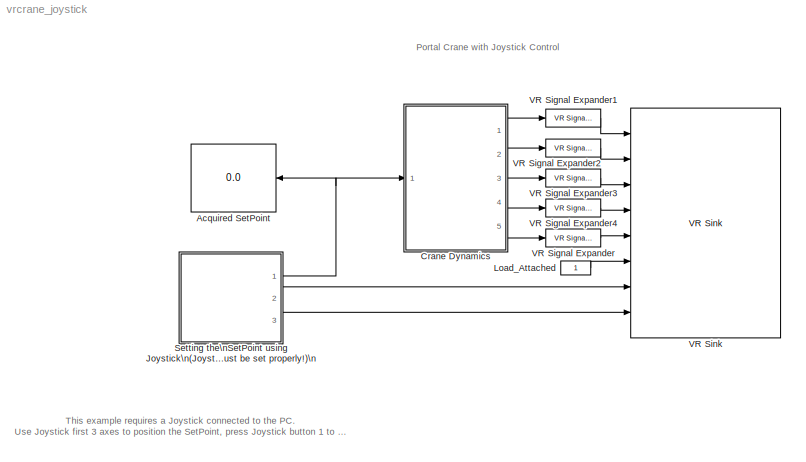
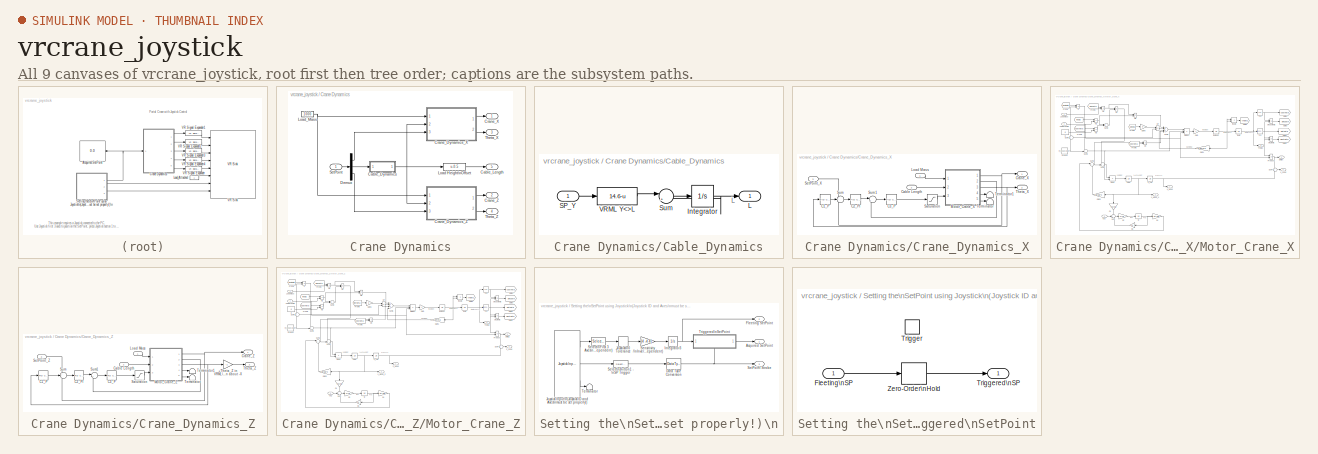
[diagram: thumbnail index - all 9 canvases of the model, root first then tree order]
MODEL vrcrane_joystick
KIND model
CONFIG PostLoadFcn = Ra=2.6;\nLa=0.012;\nB=1e-1;\nKt=1e2;\nKv=3e-2;\nKg=1e-3;\nJ=0.1;\ng=9.80665;\nm_head=100;\nGamma=10;
BLOCK [Display] Acquired SetPoint
  Decimation = 1
  Ports = [1]
BLOCK [SubSystem] Crane Dynamics
  MinAlgLoopOccurrences = off
  Ports = [1, 5]
  PropExecContextAcrossSSBoundary = on
  RTWSystemCode = Auto
  TreatAsAtomicUnit = off
BLOCK [SubSystem] Crane Dynamics/Cable_Dynamics
  MinAlgLoopOccurrences = off
  Ports = [1, 1]
  PropExecContextAcrossSSBoundary = on
  RTWSystemCode = Auto
  TreatAsAtomicUnit = off
BLOCK [Integrator] Crane Dynamics/Cable_Dynamics/Integrator
  InitialCondition = 14.6
  LimitOutput = on
  LowerSaturationLimit = 4.6
  Ports = [1, 1]
  UpperSaturationLimit = 14.6
BLOCK [Outport] Crane Dynamics/Cable_Dynamics/L
  BusOutputAsStruct = off
  IconDisplay = Port number
BLOCK [Inport] Crane Dynamics/Cable_Dynamics/SP_Y
  IconDisplay = Port number
  LatchInput = off
BLOCK [Sum] Crane Dynamics/Cable_Dynamics/Sum
  IconShape = round
  InputSameDT = off
  Inputs = |+-
  OutDataTypeMode = Inherit via internal rule
  Ports = [2, 1]
  SaturateOnIntegerOverflow = off
BLOCK [Fcn] Crane Dynamics/Cable_Dynamics/VRML Y<>L
  Expr = 14.6-u
  SampleTime = 0
BLOCK [Outport] Crane Dynamics/Cable_Length
  BusOutputAsStruct = off
  IconDisplay = Port number
  Port = 5
BLOCK [SubSystem] Crane Dynamics/Crane_Dynamics_X
  MinAlgLoopOccurrences = off
  Ports = [3, 2]
  PropExecContextAcrossSSBoundary = on
  RTWSystemCode = Auto
  TreatAsAtomicUnit = off
BLOCK [Reference] Crane Dynamics/Crane_Dynamics_X/C1_P  REF=simulink_extras/Additional\nLinear/PID Controller
  D = 0
  I = 0
  P = -20
  Ports = [1, 1]
  ShowPortLabels = on
  SourceBlock = simulink_extras/Additional\nLinear/PID Controller
  SourceType = PID Controller
BLOCK [Reference] Crane Dynamics/Crane_Dynamics_X/C2_PI  REF=simulink_extras/Additional\nLinear/PID Controller
  D = 0
  I = 0
  P = 2.5
  Ports = [1, 1]
  ShowPortLabels = on
  SourceBlock = simulink_extras/Additional\nLinear/PID Controller
  SourceType = PID Controller
BLOCK [Reference] Crane Dynamics/Crane_Dynamics_X/C3_P  REF=simulink_extras/Additional\nLinear/PID Controller
  D = 0
  I = 0
  P = 5
  Ports = [1, 1]
  ShowPortLabels = on
  SourceBlock = simulink_extras/Additional\nLinear/PID Controller
  SourceType = PID Controller
BLOCK [Inport] Crane Dynamics/Crane_Dynamics_X/Cable Length
  IconDisplay = Port number
  LatchInput = off
  Port = 2
BLOCK [Outport] Crane Dynamics/Crane_Dynamics_X/Crane_X
  BusOutputAsStruct = off
  IconDisplay = Port number
BLOCK [Inport] Crane Dynamics/Crane_Dynamics_X/Load Mass
  IconDisplay = Port number
  LatchInput = off
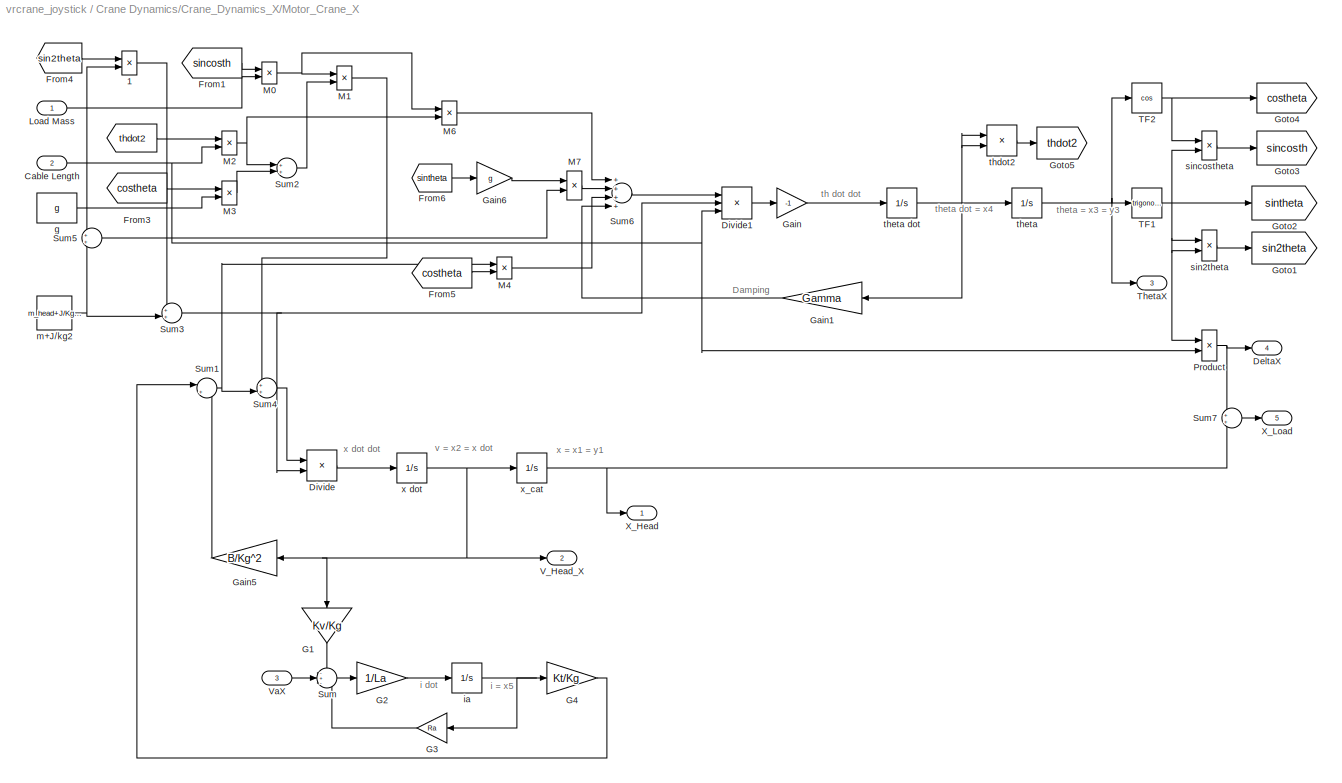
BLOCK [SubSystem] Crane Dynamics/Crane_Dynamics_X/Motor_Crane_X
  MinAlgLoopOccurrences = off
  Ports = [3, 5]
  PropExecContextAcrossSSBoundary = on
  RTWSystemCode = Auto
  TreatAsAtomicUnit = off
BLOCK [From] Crane Dynamics/Crane_Dynamics_X/Motor_Crane_X/ 
  CloseFcn = tagdialog Close
  DialogController = Simulink.DDGSource
  GotoTag = thdot2
BLOCK [Product] Crane Dynamics/Crane_Dynamics_X/Motor_Crane_X/ 1
  InputSameDT = off
  Inputs = **
  OutDataTypeMode = Inherit via internal rule
  OutScaling = 2^-10
  Ports = [2, 1]
  RndMeth = Floor
  SaturateOnIntegerOverflow = off
BLOCK [Inport] Crane Dynamics/Crane_Dynamics_X/Motor_Crane_X/Cable Length
  IconDisplay = Port number
  LatchInput = off
  Port = 2
BLOCK [Outport] Crane Dynamics/Crane_Dynamics_X/Motor_Crane_X/DeltaX
  BusOutputAsStruct = off
  IconDisplay = Port number
  Port = 4
BLOCK [Product] Crane Dynamics/Crane_Dynamics_X/Motor_Crane_X/Divide
  InputSameDT = off
  Inputs = */
  OutDataTypeMode = Inherit via internal rule
  OutScaling = 2^-10
  Ports = [2, 1]
  RndMeth = Floor
  SaturateOnIntegerOverflow = off
BLOCK [Product] Crane Dynamics/Crane_Dynamics_X/Motor_Crane_X/Divide1
  InputSameDT = off
  Inputs = *//
  OutDataTypeMode = Inherit via internal rule
  OutScaling = 2^-10
  Ports = [3, 1]
  RndMeth = Floor
  SaturateOnIntegerOverflow = off
BLOCK [From] Crane Dynamics/Crane_Dynamics_X/Motor_Crane_X/From1
  CloseFcn = tagdialog Close
  DialogController = Simulink.DDGSource
  GotoTag = sincosth
BLOCK [From] Crane Dynamics/Crane_Dynamics_X/Motor_Crane_X/From3
  CloseFcn = tagdialog Close
  DialogController = Simulink.DDGSource
  GotoTag = costheta
BLOCK [From] Crane Dynamics/Crane_Dynamics_X/Motor_Crane_X/From4
  CloseFcn = tagdialog Close
  DialogController = Simulink.DDGSource
  GotoTag = sin2theta
BLOCK [From] Crane Dynamics/Crane_Dynamics_X/Motor_Crane_X/From5
  CloseFcn = tagdialog Close
  DialogController = Simulink.DDGSource
  GotoTag = costheta
BLOCK [From] Crane Dynamics/Crane_Dynamics_X/Motor_Crane_X/From6
  CloseFcn = tagdialog Close
  DialogController = Simulink.DDGSource
  GotoTag = sintheta
BLOCK [Gain] Crane Dynamics/Crane_Dynamics_X/Motor_Crane_X/G1
  Gain = Kv/Kg
  OutDataTypeMode = Inherit via internal rule
  ParameterDataTypeMode = Inherit via internal rule
  SaturateOnIntegerOverflow = off
BLOCK [Gain] Crane Dynamics/Crane_Dynamics_X/Motor_Crane_X/G2
  Gain = 1/La
  OutDataTypeMode = Inherit via internal rule
  ParameterDataTypeMode = Inherit via internal rule
  SaturateOnIntegerOverflow = off
BLOCK [Gain] Crane Dynamics/Crane_Dynamics_X/Motor_Crane_X/G3
  Gain = Ra
  OutDataTypeMode = Inherit via internal rule
  ParameterDataTypeMode = Inherit via internal rule
  SaturateOnIntegerOverflow = off
BLOCK [Gain] Crane Dynamics/Crane_Dynamics_X/Motor_Crane_X/G4
  Gain = Kt/Kg
  OutDataTypeMode = Inherit via internal rule
  ParameterDataTypeMode = Inherit via internal rule
  SaturateOnIntegerOverflow = off
BLOCK [Gain] Crane Dynamics/Crane_Dynamics_X/Motor_Crane_X/Gain
  Gain = -1
  OutDataTypeMode = Inherit via internal rule
  ParameterDataTypeMode = Inherit via internal rule
  SaturateOnIntegerOverflow = off
BLOCK [Gain] Crane Dynamics/Crane_Dynamics_X/Motor_Crane_X/Gain1
  Gain = Gamma
  OutDataTypeMode = Inherit via internal rule
  ParameterDataTypeMode = Inherit via internal rule
  SaturateOnIntegerOverflow = off
BLOCK [Gain] Crane Dynamics/Crane_Dynamics_X/Motor_Crane_X/Gain5
  Gain = B/Kg^2
  OutDataTypeMode = Inherit via internal rule
  ParameterDataTypeMode = Inherit via internal rule
  SaturateOnIntegerOverflow = off
BLOCK [Gain] Crane Dynamics/Crane_Dynamics_X/Motor_Crane_X/Gain6
  Gain = g
  OutDataTypeMode = Inherit via internal rule
  ParameterDataTypeMode = Inherit via internal rule
  SaturateOnIntegerOverflow = off
BLOCK [Goto] Crane Dynamics/Crane_Dynamics_X/Motor_Crane_X/Goto1
  DialogController = Simulink.DDGSource
  GotoTag = sin2theta
  TagVisibility = local
BLOCK [Goto] Crane Dynamics/Crane_Dynamics_X/Motor_Crane_X/Goto2
  DialogController = Simulink.DDGSource
  GotoTag = sintheta
  TagVisibility = local
BLOCK [Goto] Crane Dynamics/Crane_Dynamics_X/Motor_Crane_X/Goto3
  DialogController = Simulink.DDGSource
  GotoTag = sincosth
  TagVisibility = local
BLOCK [Goto] Crane Dynamics/Crane_Dynamics_X/Motor_Crane_X/Goto4
  DialogController = Simulink.DDGSource
  GotoTag = costheta
  TagVisibility = local
BLOCK [Goto] Crane Dynamics/Crane_Dynamics_X/Motor_Crane_X/Goto5
  DialogController = Simulink.DDGSource
  GotoTag = thdot2
  TagVisibility = local
BLOCK [Inport] Crane Dynamics/Crane_Dynamics_X/Motor_Crane_X/Load Mass
  IconDisplay = Port number
  LatchInput = off
BLOCK [Product] Crane Dynamics/Crane_Dynamics_X/Motor_Crane_X/M0
  InputSameDT = off
  Inputs = **
  OutDataTypeMode = Inherit via internal rule
  OutScaling = 2^-10
  Ports = [2, 1]
  RndMeth = Floor
  SaturateOnIntegerOverflow = off
BLOCK [Product] Crane Dynamics/Crane_Dynamics_X/Motor_Crane_X/M1
  InputSameDT = off
  Inputs = **
  OutDataTypeMode = Inherit via internal rule
  OutScaling = 2^-10
  Ports = [2, 1]
  RndMeth = Floor
  SaturateOnIntegerOverflow = off
BLOCK [Product] Crane Dynamics/Crane_Dynamics_X/Motor_Crane_X/M2
  InputSameDT = off
  Inputs = **
  OutDataTypeMode = Inherit via internal rule
  OutScaling = 2^-10
  Ports = [2, 1]
  RndMeth = Floor
  SaturateOnIntegerOverflow = off
BLOCK [Product] Crane Dynamics/Crane_Dynamics_X/Motor_Crane_X/M3
  InputSameDT = off
  Inputs = **
  OutDataTypeMode = Inherit via internal rule
  OutScaling = 2^-10
  Ports = [2, 1]
  RndMeth = Floor
  SaturateOnIntegerOverflow = off
BLOCK [Product] Crane Dynamics/Crane_Dynamics_X/Motor_Crane_X/M4
  InputSameDT = off
  Inputs = **
  OutDataTypeMode = Inherit via internal rule
  OutScaling = 2^-10
  Ports = [2, 1]
  RndMeth = Floor
  SaturateOnIntegerOverflow = off
BLOCK [Product] Crane Dynamics/Crane_Dynamics_X/Motor_Crane_X/M6
  InputSameDT = off
  Inputs = **
  OutDataTypeMode = Inherit via internal rule
  OutScaling = 2^-10
  Ports = [2, 1]
  RndMeth = Floor
  SaturateOnIntegerOverflow = off
BLOCK [Product] Crane Dynamics/Crane_Dynamics_X/Motor_Crane_X/M7
  InputSameDT = off
  Inputs = **
  OutDataTypeMode = Inherit via internal rule
  OutScaling = 2^-10
  Ports = [2, 1]
  RndMeth = Floor
  SaturateOnIntegerOverflow = off
BLOCK [Product] Crane Dynamics/Crane_Dynamics_X/Motor_Crane_X/Product
  InputSameDT = off
  Ports = [2, 1]
  RndMeth = Floor
BLOCK [Sum] Crane Dynamics/Crane_Dynamics_X/Motor_Crane_X/Sum
  IconShape = round
  InputSameDT = off
  Inputs = -+-
  OutDataTypeMode = Inherit via internal rule
  Ports = [3, 1]
  SaturateOnIntegerOverflow = off
BLOCK [Sum] Crane Dynamics/Crane_Dynamics_X/Motor_Crane_X/Sum1
  IconShape = round
  InputSameDT = off
  Inputs = |+-
  OutDataTypeMode = Inherit via internal rule
  Ports = [2, 1]
  SaturateOnIntegerOverflow = off
BLOCK [Sum] Crane Dynamics/Crane_Dynamics_X/Motor_Crane_X/Sum2
  IconShape = round
  InputSameDT = off
  OutDataTypeMode = Inherit via internal rule
  Ports = [2, 1]
  SaturateOnIntegerOverflow = off
BLOCK [Sum] Crane Dynamics/Crane_Dynamics_X/Motor_Crane_X/Sum3
  IconShape = round
  InputSameDT = off
  Inputs = ++|
  OutDataTypeMode = Inherit via internal rule
  Ports = [2, 1]
  SaturateOnIntegerOverflow = off
BLOCK [Sum] Crane Dynamics/Crane_Dynamics_X/Motor_Crane_X/Sum4
  IconShape = round
  InputSameDT = off
  Inputs = ++|
  OutDataTypeMode = Inherit via internal rule
  Ports = [2, 1]
  SaturateOnIntegerOverflow = off
BLOCK [Sum] Crane Dynamics/Crane_Dynamics_X/Motor_Crane_X/Sum5
  IconShape = round
  InputSameDT = off
  OutDataTypeMode = Inherit via internal rule
  Ports = [2, 1]
  SaturateOnIntegerOverflow = off
BLOCK [Sum] Crane Dynamics/Crane_Dynamics_X/Motor_Crane_X/Sum6
  InputSameDT = off
  Inputs = ++++
  OutDataTypeMode = Inherit via internal rule
  Ports = [4, 1]
  SaturateOnIntegerOverflow = off
BLOCK [Sum] Crane Dynamics/Crane_Dynamics_X/Motor_Crane_X/Sum7
  IconShape = round
  InputSameDT = off
  OutDataTypeMode = Inherit via internal rule
  Ports = [2, 1]
  SaturateOnIntegerOverflow = off
BLOCK [Trigonometry] Crane Dynamics/Crane_Dynamics_X/Motor_Crane_X/TF1
  Ports = [1, 1]
BLOCK [Trigonometry] Crane Dynamics/Crane_Dynamics_X/Motor_Crane_X/TF2
  Operator = cos
  Ports = [1, 1]
BLOCK [Outport] Crane Dynamics/Crane_Dynamics_X/Motor_Crane_X/ThetaX
  BusOutputAsStruct = off
  IconDisplay = Port number
  Port = 3
BLOCK [Outport] Crane Dynamics/Crane_Dynamics_X/Motor_Crane_X/V_Head_X
  BusOutputAsStruct = off
  IconDisplay = Port number
  Port = 2
BLOCK [Inport] Crane Dynamics/Crane_Dynamics_X/Motor_Crane_X/VaX
  IconDisplay = Port number
  LatchInput = off
  Port = 3
BLOCK [Outport] Crane Dynamics/Crane_Dynamics_X/Motor_Crane_X/X_Head
  BusOutputAsStruct = off
  IconDisplay = Port number
BLOCK [Outport] Crane Dynamics/Crane_Dynamics_X/Motor_Crane_X/X_Load
  BusOutputAsStruct = off
  IconDisplay = Port number
  Port = 5
BLOCK [Constant] Crane Dynamics/Crane_Dynamics_X/Motor_Crane_X/g
  Value = g
BLOCK [Integrator] Crane Dynamics/Crane_Dynamics_X/Motor_Crane_X/ia
  Ports = [1, 1]
BLOCK [Constant] Crane Dynamics/Crane_Dynamics_X/Motor_Crane_X/m+J//kg2
  Value = m_head+J/Kg^2
BLOCK [Product] Crane Dynamics/Crane_Dynamics_X/Motor_Crane_X/sin2theta
  InputSameDT = off
  Inputs = **
  OutDataTypeMode = Inherit via internal rule
  OutScaling = 2^-10
  Ports = [2, 1]
  RndMeth = Floor
  SaturateOnIntegerOverflow = off
BLOCK [Product] Crane Dynamics/Crane_Dynamics_X/Motor_Crane_X/sincostheta
  InputSameDT = off
  Inputs = **
  OutDataTypeMode = Inherit via internal rule
  OutScaling = 2^-10
  Ports = [2, 1]
  RndMeth = Floor
  SaturateOnIntegerOverflow = off
BLOCK [Product] Crane Dynamics/Crane_Dynamics_X/Motor_Crane_X/thdot2
  InputSameDT = off
  Inputs = **
  OutDataTypeMode = Inherit via internal rule
  OutScaling = 2^-10
  Ports = [2, 1]
  RndMeth = Floor
  SaturateOnIntegerOverflow = off
BLOCK [Integrator] Crane Dynamics/Crane_Dynamics_X/Motor_Crane_X/theta
  Ports = [1, 1]
BLOCK [Integrator] Crane Dynamics/Crane_Dynamics_X/Motor_Crane_X/theta dot
  Ports = [1, 1]
BLOCK [Integrator] Crane Dynamics/Crane_Dynamics_X/Motor_Crane_X/x dot
  Ports = [1, 1]
BLOCK [Integrator] Crane Dynamics/Crane_Dynamics_X/Motor_Crane_X/x_cat
  Ports = [1, 1]
BLOCK [Saturate] Crane Dynamics/Crane_Dynamics_X/Saturation
  LowerLimit = -50
  UpperLimit = 50
BLOCK [Inport] Crane Dynamics/Crane_Dynamics_X/SetPoint_X
  IconDisplay = Port number
  LatchInput = off
  Port = 3
BLOCK [Sum] Crane Dynamics/Crane_Dynamics_X/Sum
  IconShape = round
  Inputs = +--
  Ports = [3, 1]
BLOCK [Sum] Crane Dynamics/Crane_Dynamics_X/Sum1
  IconShape = round
  Inputs = |+-
  Ports = [2, 1]
BLOCK [Terminator] Crane Dynamics/Crane_Dynamics_X/Terminator
BLOCK [Terminator] Crane Dynamics/Crane_Dynamics_X/Terminator1
BLOCK [Outport] Crane Dynamics/Crane_Dynamics_X/Theta_X
  BusOutputAsStruct = off
  IconDisplay = Port number
  Port = 2
BLOCK [SubSystem] Crane Dynamics/Crane_Dynamics_Z
  MinAlgLoopOccurrences = off
  Ports = [3, 2]
  PropExecContextAcrossSSBoundary = on
  RTWSystemCode = Auto
  TreatAsAtomicUnit = off
BLOCK [Gain] Crane Dynamics/Crane_Dynamics_Z/+Theta_Z in VRML\nrepresented by\nrotation about -X
  Gain = -1
  OutDataTypeMode = Inherit via internal rule
  ParameterDataTypeMode = Inherit via internal rule
  SaturateOnIntegerOverflow = off
BLOCK [Reference] Crane Dynamics/Crane_Dynamics_Z/C1_P  REF=simulink_extras/Additional\nLinear/PID Controller
  D = 0
  I = 0
  P = -20
  Ports = [1, 1]
  ShowPortLabels = on
  SourceBlock = simulink_extras/Additional\nLinear/PID Controller
  SourceType = PID Controller
BLOCK [Reference] Crane Dynamics/Crane_Dynamics_Z/C2_PI  REF=simulink_extras/Additional\nLinear/PID Controller
  D = 0
  I = 0
  P = 2.5
  Ports = [1, 1]
  ShowPortLabels = on
  SourceBlock = simulink_extras/Additional\nLinear/PID Controller
  SourceType = PID Controller
BLOCK [Reference] Crane Dynamics/Crane_Dynamics_Z/C3_P  REF=simulink_extras/Additional\nLinear/PID Controller
  D = 0
  I = 0
  P = 5
  Ports = [1, 1]
  ShowPortLabels = on
  SourceBlock = simulink_extras/Additional\nLinear/PID Controller
  SourceType = PID Controller
BLOCK [Inport] Crane Dynamics/Crane_Dynamics_Z/Cable Length
  IconDisplay = Port number
  LatchInput = off
  Port = 2
BLOCK [Outport] Crane Dynamics/Crane_Dynamics_Z/Crane_Z
  BusOutputAsStruct = off
  IconDisplay = Port number
BLOCK [Inport] Crane Dynamics/Crane_Dynamics_Z/Load Mass
  IconDisplay = Port number
  LatchInput = off
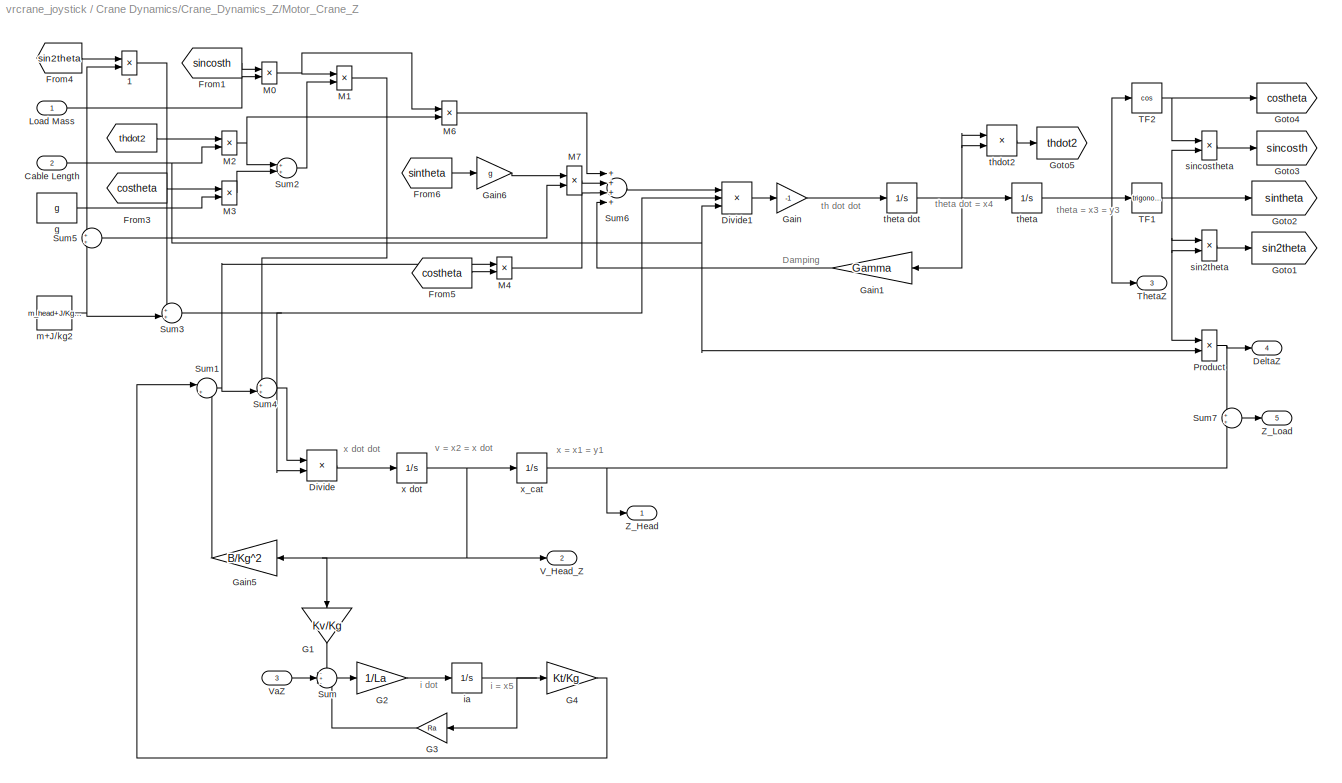
BLOCK [SubSystem] Crane Dynamics/Crane_Dynamics_Z/Motor_Crane_Z
  MinAlgLoopOccurrences = off
  Ports = [3, 5]
  PropExecContextAcrossSSBoundary = on
  RTWSystemCode = Auto
  TreatAsAtomicUnit = off
BLOCK [From] Crane Dynamics/Crane_Dynamics_Z/Motor_Crane_Z/ 
  CloseFcn = tagdialog Close
  DialogController = Simulink.DDGSource
  GotoTag = thdot2
BLOCK [Product] Crane Dynamics/Crane_Dynamics_Z/Motor_Crane_Z/ 1
  InputSameDT = off
  Inputs = **
  OutDataTypeMode = Inherit via internal rule
  OutScaling = 2^-10
  Ports = [2, 1]
  RndMeth = Floor
  SaturateOnIntegerOverflow = off
BLOCK [Inport] Crane Dynamics/Crane_Dynamics_Z/Motor_Crane_Z/Cable Length
  IconDisplay = Port number
  LatchInput = off
  Port = 2
BLOCK [Outport] Crane Dynamics/Crane_Dynamics_Z/Motor_Crane_Z/DeltaZ
  BusOutputAsStruct = off
  IconDisplay = Port number
  Port = 4
BLOCK [Product] Crane Dynamics/Crane_Dynamics_Z/Motor_Crane_Z/Divide
  InputSameDT = off
  Inputs = */
  OutDataTypeMode = Inherit via internal rule
  OutScaling = 2^-10
  Ports = [2, 1]
  RndMeth = Floor
  SaturateOnIntegerOverflow = off
BLOCK [Product] Crane Dynamics/Crane_Dynamics_Z/Motor_Crane_Z/Divide1
  InputSameDT = off
  Inputs = *//
  OutDataTypeMode = Inherit via internal rule
  OutScaling = 2^-10
  Ports = [3, 1]
  RndMeth = Floor
  SaturateOnIntegerOverflow = off
BLOCK [From] Crane Dynamics/Crane_Dynamics_Z/Motor_Crane_Z/From1
  CloseFcn = tagdialog Close
  DialogController = Simulink.DDGSource
  GotoTag = sincosth
BLOCK [From] Crane Dynamics/Crane_Dynamics_Z/Motor_Crane_Z/From3
  CloseFcn = tagdialog Close
  DialogController = Simulink.DDGSource
  GotoTag = costheta
BLOCK [From] Crane Dynamics/Crane_Dynamics_Z/Motor_Crane_Z/From4
  CloseFcn = tagdialog Close
  DialogController = Simulink.DDGSource
  GotoTag = sin2theta
BLOCK [From] Crane Dynamics/Crane_Dynamics_Z/Motor_Crane_Z/From5
  CloseFcn = tagdialog Close
  DialogController = Simulink.DDGSource
  GotoTag = costheta
BLOCK [From] Crane Dynamics/Crane_Dynamics_Z/Motor_Crane_Z/From6
  CloseFcn = tagdialog Close
  DialogController = Simulink.DDGSource
  GotoTag = sintheta
BLOCK [Gain] Crane Dynamics/Crane_Dynamics_Z/Motor_Crane_Z/G1
  Gain = Kv/Kg
  OutDataTypeMode = Inherit via internal rule
  ParameterDataTypeMode = Inherit via internal rule
  SaturateOnIntegerOverflow = off
BLOCK [Gain] Crane Dynamics/Crane_Dynamics_Z/Motor_Crane_Z/G2
  Gain = 1/La
  OutDataTypeMode = Inherit via internal rule
  ParameterDataTypeMode = Inherit via internal rule
  SaturateOnIntegerOverflow = off
BLOCK [Gain] Crane Dynamics/Crane_Dynamics_Z/Motor_Crane_Z/G3
  Gain = Ra
  OutDataTypeMode = Inherit via internal rule
  ParameterDataTypeMode = Inherit via internal rule
  SaturateOnIntegerOverflow = off
BLOCK [Gain] Crane Dynamics/Crane_Dynamics_Z/Motor_Crane_Z/G4
  Gain = Kt/Kg
  OutDataTypeMode = Inherit via internal rule
  ParameterDataTypeMode = Inherit via internal rule
  SaturateOnIntegerOverflow = off
BLOCK [Gain] Crane Dynamics/Crane_Dynamics_Z/Motor_Crane_Z/Gain
  Gain = -1
  OutDataTypeMode = Inherit via internal rule
  ParameterDataTypeMode = Inherit via internal rule
  SaturateOnIntegerOverflow = off
BLOCK [Gain] Crane Dynamics/Crane_Dynamics_Z/Motor_Crane_Z/Gain1
  Gain = Gamma
  OutDataTypeMode = Inherit via internal rule
  ParameterDataTypeMode = Inherit via internal rule
  SaturateOnIntegerOverflow = off
BLOCK [Gain] Crane Dynamics/Crane_Dynamics_Z/Motor_Crane_Z/Gain5
  Gain = B/Kg^2
  OutDataTypeMode = Inherit via internal rule
  ParameterDataTypeMode = Inherit via internal rule
  SaturateOnIntegerOverflow = off
BLOCK [Gain] Crane Dynamics/Crane_Dynamics_Z/Motor_Crane_Z/Gain6
  Gain = g
  OutDataTypeMode = Inherit via internal rule
  ParameterDataTypeMode = Inherit via internal rule
  SaturateOnIntegerOverflow = off
BLOCK [Goto] Crane Dynamics/Crane_Dynamics_Z/Motor_Crane_Z/Goto1
  DialogController = Simulink.DDGSource
  GotoTag = sin2theta
  TagVisibility = local
BLOCK [Goto] Crane Dynamics/Crane_Dynamics_Z/Motor_Crane_Z/Goto2
  DialogController = Simulink.DDGSource
  GotoTag = sintheta
  TagVisibility = local
BLOCK [Goto] Crane Dynamics/Crane_Dynamics_Z/Motor_Crane_Z/Goto3
  DialogController = Simulink.DDGSource
  GotoTag = sincosth
  TagVisibility = local
BLOCK [Goto] Crane Dynamics/Crane_Dynamics_Z/Motor_Crane_Z/Goto4
  DialogController = Simulink.DDGSource
  GotoTag = costheta
  TagVisibility = local
BLOCK [Goto] Crane Dynamics/Crane_Dynamics_Z/Motor_Crane_Z/Goto5
  DialogController = Simulink.DDGSource
  GotoTag = thdot2
  TagVisibility = local
BLOCK [Inport] Crane Dynamics/Crane_Dynamics_Z/Motor_Crane_Z/Load Mass
  IconDisplay = Port number
  LatchInput = off
BLOCK [Product] Crane Dynamics/Crane_Dynamics_Z/Motor_Crane_Z/M0
  InputSameDT = off
  Inputs = **
  OutDataTypeMode = Inherit via internal rule
  OutScaling = 2^-10
  Ports = [2, 1]
  RndMeth = Floor
  SaturateOnIntegerOverflow = off
BLOCK [Product] Crane Dynamics/Crane_Dynamics_Z/Motor_Crane_Z/M1
  InputSameDT = off
  Inputs = **
  OutDataTypeMode = Inherit via internal rule
  OutScaling = 2^-10
  Ports = [2, 1]
  RndMeth = Floor
  SaturateOnIntegerOverflow = off
BLOCK [Product] Crane Dynamics/Crane_Dynamics_Z/Motor_Crane_Z/M2
  InputSameDT = off
  Inputs = **
  OutDataTypeMode = Inherit via internal rule
  OutScaling = 2^-10
  Ports = [2, 1]
  RndMeth = Floor
  SaturateOnIntegerOverflow = off
BLOCK [Product] Crane Dynamics/Crane_Dynamics_Z/Motor_Crane_Z/M3
  InputSameDT = off
  Inputs = **
  OutDataTypeMode = Inherit via internal rule
  OutScaling = 2^-10
  Ports = [2, 1]
  RndMeth = Floor
  SaturateOnIntegerOverflow = off
BLOCK [Product] Crane Dynamics/Crane_Dynamics_Z/Motor_Crane_Z/M4
  InputSameDT = off
  Inputs = **
  OutDataTypeMode = Inherit via internal rule
  OutScaling = 2^-10
  Ports = [2, 1]
  RndMeth = Floor
  SaturateOnIntegerOverflow = off
BLOCK [Product] Crane Dynamics/Crane_Dynamics_Z/Motor_Crane_Z/M6
  InputSameDT = off
  Inputs = **
  OutDataTypeMode = Inherit via internal rule
  OutScaling = 2^-10
  Ports = [2, 1]
  RndMeth = Floor
  SaturateOnIntegerOverflow = off
BLOCK [Product] Crane Dynamics/Crane_Dynamics_Z/Motor_Crane_Z/M7
  InputSameDT = off
  Inputs = **
  OutDataTypeMode = Inherit via internal rule
  OutScaling = 2^-10
  Ports = [2, 1]
  RndMeth = Floor
  SaturateOnIntegerOverflow = off
BLOCK [Product] Crane Dynamics/Crane_Dynamics_Z/Motor_Crane_Z/Product
  InputSameDT = off
  Ports = [2, 1]
  RndMeth = Floor
BLOCK [Sum] Crane Dynamics/Crane_Dynamics_Z/Motor_Crane_Z/Sum
  IconShape = round
  InputSameDT = off
  Inputs = -+-
  OutDataTypeMode = Inherit via internal rule
  Ports = [3, 1]
  SaturateOnIntegerOverflow = off
BLOCK [Sum] Crane Dynamics/Crane_Dynamics_Z/Motor_Crane_Z/Sum1
  IconShape = round
  InputSameDT = off
  Inputs = |+-
  OutDataTypeMode = Inherit via internal rule
  Ports = [2, 1]
  SaturateOnIntegerOverflow = off
BLOCK [Sum] Crane Dynamics/Crane_Dynamics_Z/Motor_Crane_Z/Sum2
  IconShape = round
  InputSameDT = off
  OutDataTypeMode = Inherit via internal rule
  Ports = [2, 1]
  SaturateOnIntegerOverflow = off
BLOCK [Sum] Crane Dynamics/Crane_Dynamics_Z/Motor_Crane_Z/Sum3
  IconShape = round
  InputSameDT = off
  Inputs = ++|
  OutDataTypeMode = Inherit via internal rule
  Ports = [2, 1]
  SaturateOnIntegerOverflow = off
BLOCK [Sum] Crane Dynamics/Crane_Dynamics_Z/Motor_Crane_Z/Sum4
  IconShape = round
  InputSameDT = off
  Inputs = ++|
  OutDataTypeMode = Inherit via internal rule
  Ports = [2, 1]
  SaturateOnIntegerOverflow = off
BLOCK [Sum] Crane Dynamics/Crane_Dynamics_Z/Motor_Crane_Z/Sum5
  IconShape = round
  InputSameDT = off
  OutDataTypeMode = Inherit via internal rule
  Ports = [2, 1]
  SaturateOnIntegerOverflow = off
BLOCK [Sum] Crane Dynamics/Crane_Dynamics_Z/Motor_Crane_Z/Sum6
  InputSameDT = off
  Inputs = ++++
  OutDataTypeMode = Inherit via internal rule
  Ports = [4, 1]
  SaturateOnIntegerOverflow = off
BLOCK [Sum] Crane Dynamics/Crane_Dynamics_Z/Motor_Crane_Z/Sum7
  IconShape = round
  InputSameDT = off
  OutDataTypeMode = Inherit via internal rule
  Ports = [2, 1]
  SaturateOnIntegerOverflow = off
BLOCK [Trigonometry] Crane Dynamics/Crane_Dynamics_Z/Motor_Crane_Z/TF1
  Ports = [1, 1]
BLOCK [Trigonometry] Crane Dynamics/Crane_Dynamics_Z/Motor_Crane_Z/TF2
  Operator = cos
  Ports = [1, 1]
BLOCK [Outport] Crane Dynamics/Crane_Dynamics_Z/Motor_Crane_Z/ThetaZ
  BusOutputAsStruct = off
  IconDisplay = Port number
  Port = 3
BLOCK [Outport] Crane Dynamics/Crane_Dynamics_Z/Motor_Crane_Z/V_Head_Z
  BusOutputAsStruct = off
  IconDisplay = Port number
  Port = 2
BLOCK [Inport] Crane Dynamics/Crane_Dynamics_Z/Motor_Crane_Z/VaZ
  IconDisplay = Port number
  LatchInput = off
  Port = 3
BLOCK [Outport] Crane Dynamics/Crane_Dynamics_Z/Motor_Crane_Z/Z_Head
  BusOutputAsStruct = off
  IconDisplay = Port number
BLOCK [Outport] Crane Dynamics/Crane_Dynamics_Z/Motor_Crane_Z/Z_Load
  BusOutputAsStruct = off
  IconDisplay = Port number
  Port = 5
BLOCK [Constant] Crane Dynamics/Crane_Dynamics_Z/Motor_Crane_Z/g
  Value = g
BLOCK [Integrator] Crane Dynamics/Crane_Dynamics_Z/Motor_Crane_Z/ia
  Ports = [1, 1]
BLOCK [Constant] Crane Dynamics/Crane_Dynamics_Z/Motor_Crane_Z/m+J//kg2
  Value = m_head+J/Kg^2
BLOCK [Product] Crane Dynamics/Crane_Dynamics_Z/Motor_Crane_Z/sin2theta
  InputSameDT = off
  Inputs = **
  OutDataTypeMode = Inherit via internal rule
  OutScaling = 2^-10
  Ports = [2, 1]
  RndMeth = Floor
  SaturateOnIntegerOverflow = off
BLOCK [Product] Crane Dynamics/Crane_Dynamics_Z/Motor_Crane_Z/sincostheta
  InputSameDT = off
  Inputs = **
  OutDataTypeMode = Inherit via internal rule
  OutScaling = 2^-10
  Ports = [2, 1]
  RndMeth = Floor
  SaturateOnIntegerOverflow = off
BLOCK [Product] Crane Dynamics/Crane_Dynamics_Z/Motor_Crane_Z/thdot2
  InputSameDT = off
  Inputs = **
  OutDataTypeMode = Inherit via internal rule
  OutScaling = 2^-10
  Ports = [2, 1]
  RndMeth = Floor
  SaturateOnIntegerOverflow = off
BLOCK [Integrator] Crane Dynamics/Crane_Dynamics_Z/Motor_Crane_Z/theta
  Ports = [1, 1]
BLOCK [Integrator] Crane Dynamics/Crane_Dynamics_Z/Motor_Crane_Z/theta dot
  Ports = [1, 1]
BLOCK [Integrator] Crane Dynamics/Crane_Dynamics_Z/Motor_Crane_Z/x dot
  Ports = [1, 1]
BLOCK [Integrator] Crane Dynamics/Crane_Dynamics_Z/Motor_Crane_Z/x_cat
  Ports = [1, 1]
BLOCK [Saturate] Crane Dynamics/Crane_Dynamics_Z/Saturation
  LowerLimit = -50
  UpperLimit = 50
BLOCK [Inport] Crane Dynamics/Crane_Dynamics_Z/SetPoint_Z
  IconDisplay = Port number
  LatchInput = off
  Port = 3
BLOCK [Sum] Crane Dynamics/Crane_Dynamics_Z/Sum
  IconShape = round
  Inputs = +--
  Ports = [3, 1]
BLOCK [Sum] Crane Dynamics/Crane_Dynamics_Z/Sum1
  IconShape = round
  Inputs = |+-
  Ports = [2, 1]
BLOCK [Terminator] Crane Dynamics/Crane_Dynamics_Z/Terminator
BLOCK [Terminator] Crane Dynamics/Crane_Dynamics_Z/Terminator1
BLOCK [Outport] Crane Dynamics/Crane_Dynamics_Z/Theta_Z
  BusOutputAsStruct = off
  IconDisplay = Port number
  Port = 2
BLOCK [Outport] Crane Dynamics/Crane_X
  BusOutputAsStruct = off
  IconDisplay = Port number
BLOCK [Outport] Crane Dynamics/Crane_Z
  BusOutputAsStruct = off
  IconDisplay = Port number
  Port = 2
BLOCK [Demux] Crane Dynamics/Demux
  DisplayOption = bar
  Outputs = 3
  Ports = [1, 3]
BLOCK [Fcn] Crane Dynamics/Load Height\nOffset 
  Expr = u-0.5
BLOCK [Constant] Crane Dynamics/Load_Mass
  Value = 1000
BLOCK [Inport] Crane Dynamics/SetPoint
  IconDisplay = Port number
  LatchInput = off
BLOCK [Outport] Crane Dynamics/Theta_X
  BusOutputAsStruct = off
  IconDisplay = Port number
  Port = 3
BLOCK [Outport] Crane Dynamics/Theta_Z
  BusOutputAsStruct = off
  IconDisplay = Port number
  Port = 4
BLOCK [Constant] Load_Attached
BLOCK [SubSystem] Setting the\nSetPoint using Joystick\n(Joystick ID and Axes\nmust be set properly!)\n
  MinAlgLoopOccurrences = off
  Ports = [0, 3]
  PropExecContextAcrossSSBoundary = on
  RTWSystemCode = Auto
  TreatAsAtomicUnit = off
BLOCK [Outport] Setting the\nSetPoint using Joystick\n(Joystick ID and Axes\nmust be set properly!)\n/Acquired SetPoint
  BusOutputAsStruct = off
  IconDisplay = Port number
BLOCK [DataTypeConversion] Setting the\nSetPoint using Joystick\n(Joystick ID and Axes\nmust be set properly!)\n/Data Type Conversion
  OutDataTypeMode = boolean
  RndMeth = Floor
  SaturateOnIntegerOverflow = off
BLOCK [Outport] Setting the\nSetPoint using Joystick\n(Joystick ID and Axes\nmust be set properly!)\n/Fleeting SetPoint
  BusOutputAsStruct = off
  IconDisplay = Port number
  Port = 2
BLOCK [Integrator] Setting the\nSetPoint using Joystick\n(Joystick ID and Axes\nmust be set properly!)\n/Integrator3
  InitialCondition = [0 0 0]
  LimitOutput = on
  LowerSaturationLimit = [0 0 0]
  Ports = [1, 1]
  UpperSaturationLimit = [20 10 20]
BLOCK [Reference] Setting the\nSetPoint using Joystick\n(Joystick ID and Axes\nmust be set properly!)\n/Joystick Input\n(Joystick ID and Axes\nmust be set properly!)  REF=vrlib/Joystick Input
  Ports = [0, 3]
  SourceBlock = vrlib/Joystick Input
  SourceType = Joystick Input
  adjustports = off
  forcefeed = off
  joyid = 1
BLOCK [DeadZone] Setting the\nSetPoint using Joystick\n(Joystick ID and Axes\nmust be set properly!)\n/Joystick\n0 Tolerance
  LowerValue = -0.2
  UpperValue = 0.2
BLOCK [Selector] Setting the\nSetPoint using Joystick\n(Joystick ID and Axes\nmust be set properly!)\n/Select\nButton1 - \nSP Trigger
  Elements = [1]
  InputPortWidth = 32
  Ports = [1, 1]
BLOCK [Selector] Setting the\nSetPoint using Joystick\n(Joystick ID and Axes\nmust be set properly!)\n/Select\nFirst 3 Axes\n(Joystick -dependent)
  Elements = [1 3 2]
  InputPortWidth = 8
  Ports = [1, 1]
BLOCK [Gain] Setting the\nSetPoint using Joystick\n(Joystick ID and Axes\nmust be set properly!)\n/Sensitivity //\nInverting Y \n(Joystick -dependent)
  Gain = [4 -4 4]
  OutDataTypeMode = Inherit via internal rule
  ParameterDataTypeMode = Inherit via internal rule
  SaturateOnIntegerOverflow = off
BLOCK [Outport] Setting the\nSetPoint using Joystick\n(Joystick ID and Axes\nmust be set properly!)\n/SetPoint Strobe
  BusOutputAsStruct = off
  IconDisplay = Port number
  Port = 3
BLOCK [Terminator] Setting the\nSetPoint using Joystick\n(Joystick ID and Axes\nmust be set properly!)\n/Terminator
BLOCK [SubSystem] Setting the\nSetPoint using Joystick\n(Joystick ID and Axes\nmust be set properly!)\n/Triggered\nSetPoint
  MinAlgLoopOccurrences = off
  Ports = [1, 1, 0, 1]
  PropExecContextAcrossSSBoundary = on
  RTWSystemCode = Auto
  TreatAsAtomicUnit = on
BLOCK [Inport] Setting the\nSetPoint using Joystick\n(Joystick ID and Axes\nmust be set properly!)\n/Triggered\nSetPoint/Fleeting\nSP
  IconDisplay = Port number
  LatchInput = off
BLOCK [TriggerPort] Setting the\nSetPoint using Joystick\n(Joystick ID and Axes\nmust be set properly!)\n/Triggered\nSetPoint/Trigger
  Ports = []
  StatesWhenEnabling = held
BLOCK [Outport] Setting the\nSetPoint using Joystick\n(Joystick ID and Axes\nmust be set properly!)\n/Triggered\nSetPoint/Triggered\nSP
  BusOutputAsStruct = off
  IconDisplay = Port number
BLOCK [ZeroOrderHold] Setting the\nSetPoint using Joystick\n(Joystick ID and Axes\nmust be set properly!)\n/Triggered\nSetPoint/Zero-Order\nHold
  SampleTime = -1
BLOCK [Reference] VR Signal Expander  REF=vrlib/VR Signal Expander
  Ports = [1, 1]
  ShowPortLabels = on
  SourceBlock = vrlib/VR Signal Expander
  SourceType = VR Signal Expander
  outidx = [2]
  outwidth = 3
BLOCK [Reference] VR Signal Expander1  REF=vrlib/VR Signal Expander
  Ports = [1, 1]
  ShowPortLabels = on
  SourceBlock = vrlib/VR Signal Expander
  SourceType = VR Signal Expander
  outidx = [1]
  outwidth = 3
BLOCK [Reference] VR Signal Expander2  REF=vrlib/VR Signal Expander
  Ports = [1, 1]
  ShowPortLabels = on
  SourceBlock = vrlib/VR Signal Expander
  SourceType = VR Signal Expander
  outidx = [3]
  outwidth = 3
BLOCK [Reference] VR Signal Expander3  REF=vrlib/VR Signal Expander
  Ports = [1, 1]
  ShowPortLabels = on
  SourceBlock = vrlib/VR Signal Expander
  SourceType = VR Signal Expander
  outidx = [4]
  outwidth = 4
BLOCK [Reference] VR Signal Expander4  REF=vrlib/VR Signal Expander
  Ports = [1, 1]
  ShowPortLabels = on
  SourceBlock = vrlib/VR Signal Expander
  SourceType = VR Signal Expander
  outidx = [4]
  outwidth = 4
BLOCK [Reference] VR Sink  REF=vrlib/VR Sink
  AutoView = on
  FieldsWritten = Crane_X.translation.3.1.double#Crane_Z.translation.3.1.double#Parts_Rot_ZAxis.rotation.4.1.double#Parts_Rot_XAxis.rotation.4.1.double#CableUnit.scale.3.1.double#Load_Switch.whichChoice.1.1.double#SetPoint.translation.3.1.double#SP_Highlight.whichChoice.1.1.double
  FigureProperties = {'Position', 'Name', 'Viewpoint', 'CameraBound', 'CameraDirection', 'CameraPosition', 'CameraUpVector', 'ZoomFactor', 'Antialiasing', 'Headlight', 'Lighting', 'NavPanel', 'StatusBar', 'ToolBar', 'Textures', 'Transparency', 'Wireframe', 'NavZones', 'NavMode', 'NavSpeed', 'Record2DCompressMethod', 'Record2DCompressQuality', 'Record2D', 'Record2DFileName'; [6.0000000000000000e+000  7.0000000000000000...<+501ch>
  Ports = [8]
  RemoteChange = off
  RemoteView = off
  SampleTime = 0.1
  SourceBlock = vrlib/VR Sink
  SourceType = Virtual Reality Sink
  ViewEnable = on
  WorldDescription = VR Portal Crane
  WorldFileName = portal_crane.wrl
ANNOTATION (root): Portal Crane with Joystick Control
ANNOTATION (root): This example requires a Joystick connected to the PC.\nUse Joystick first 3 axes to position the SetPoint, press Joystick button 1 to start the crane.
ANNOTATION Crane Dynamics/Cable_Dynamics: L
ANNOTATION Crane Dynamics/Crane_Dynamics_X/Motor_Crane_X: Damping
ANNOTATION Crane Dynamics/Crane_Dynamics_X/Motor_Crane_X: i = x5
ANNOTATION Crane Dynamics/Crane_Dynamics_X/Motor_Crane_X: i dot
ANNOTATION Crane Dynamics/Crane_Dynamics_X/Motor_Crane_X: th dot dot
ANNOTATION Crane Dynamics/Crane_Dynamics_X/Motor_Crane_X: theta = x3 = y3
ANNOTATION Crane Dynamics/Crane_Dynamics_X/Motor_Crane_X: theta dot = x4
ANNOTATION Crane Dynamics/Crane_Dynamics_X/Motor_Crane_X: v = x2 = x dot
ANNOTATION Crane Dynamics/Crane_Dynamics_X/Motor_Crane_X: x = x1 = y1
ANNOTATION Crane Dynamics/Crane_Dynamics_X/Motor_Crane_X: x dot dot
ANNOTATION Crane Dynamics/Crane_Dynamics_Z/Motor_Crane_Z: Damping
ANNOTATION Crane Dynamics/Crane_Dynamics_Z/Motor_Crane_Z: i = x5
ANNOTATION Crane Dynamics/Crane_Dynamics_Z/Motor_Crane_Z: i dot
ANNOTATION Crane Dynamics/Crane_Dynamics_Z/Motor_Crane_Z: th dot dot
ANNOTATION Crane Dynamics/Crane_Dynamics_Z/Motor_Crane_Z: theta = x3 = y3
ANNOTATION Crane Dynamics/Crane_Dynamics_Z/Motor_Crane_Z: theta dot = x4
ANNOTATION Crane Dynamics/Crane_Dynamics_Z/Motor_Crane_Z: v = x2 = x dot
ANNOTATION Crane Dynamics/Crane_Dynamics_Z/Motor_Crane_Z: x = x1 = y1
ANNOTATION Crane Dynamics/Crane_Dynamics_Z/Motor_Crane_Z: x dot dot
NET Crane Dynamics/Cable_Dynamics/Integrator:1 -> Crane Dynamics/Cable_Dynamics/L:1, Crane Dynamics/Cable_Dynamics/Sum:2
LINE Crane Dynamics/Cable_Dynamics/SP_Y:1 -> Crane Dynamics/Cable_Dynamics/VRML Y<>L:1
LINE Crane Dynamics/Cable_Dynamics/Sum:1 -> Crane Dynamics/Cable_Dynamics/Integrator:1
LINE Crane Dynamics/Cable_Dynamics/VRML Y<>L:1 -> Crane Dynamics/Cable_Dynamics/Sum:1
NET Crane Dynamics/Cable_Dynamics:1 -> Crane Dynamics/Crane_Dynamics_X:2, Crane Dynamics/Crane_Dynamics_Z:2, Crane Dynamics/Load Height\nOffset :1
LINE Crane Dynamics/Crane_Dynamics_X/C1_P:1 -> Crane Dynamics/Crane_Dynamics_X/Sum:2
LINE Crane Dynamics/Crane_Dynamics_X/C2_PI:1 -> Crane Dynamics/Crane_Dynamics_X/Sum1:1
LINE Crane Dynamics/Crane_Dynamics_X/C3_P:1 -> Crane Dynamics/Crane_Dynamics_X/Saturation:1
LINE Crane Dynamics/Crane_Dynamics_X/Cable Length:1 -> Crane Dynamics/Crane_Dynamics_X/Motor_Crane_X:2
LINE Crane Dynamics/Crane_Dynamics_X/Load Mass:1 -> Crane Dynamics/Crane_Dynamics_X/Motor_Crane_X:1
LINE Crane Dynamics/Crane_Dynamics_X/Motor_Crane_X/ 1:1 -> Crane Dynamics/Crane_Dynamics_X/Motor_Crane_X/Sum3:1
LINE Crane Dynamics/Crane_Dynamics_X/Motor_Crane_X/ :1 -> Crane Dynamics/Crane_Dynamics_X/Motor_Crane_X/M2:1
NET Crane Dynamics/Crane_Dynamics_X/Motor_Crane_X/Cable Length:1 -> Crane Dynamics/Crane_Dynamics_X/Motor_Crane_X/Divide1:3, Crane Dynamics/Crane_Dynamics_X/Motor_Crane_X/M2:2, Crane Dynamics/Crane_Dynamics_X/Motor_Crane_X/Product:2
LINE Crane Dynamics/Crane_Dynamics_X/Motor_Crane_X/Divide1:1 -> Crane Dynamics/Crane_Dynamics_X/Motor_Crane_X/Gain:1
LINE Crane Dynamics/Crane_Dynamics_X/Motor_Crane_X/Divide:1 -> Crane Dynamics/Crane_Dynamics_X/Motor_Crane_X/x dot:1
LINE Crane Dynamics/Crane_Dynamics_X/Motor_Crane_X/From1:1 -> Crane Dynamics/Crane_Dynamics_X/Motor_Crane_X/M0:1
LINE Crane Dynamics/Crane_Dynamics_X/Motor_Crane_X/From3:1 -> Crane Dynamics/Crane_Dynamics_X/Motor_Crane_X/M3:1
LINE Crane Dynamics/Crane_Dynamics_X/Motor_Crane_X/From4:1 -> Crane Dynamics/Crane_Dynamics_X/Motor_Crane_X/ 1:1
LINE Crane Dynamics/Crane_Dynamics_X/Motor_Crane_X/From5:1 -> Crane Dynamics/Crane_Dynamics_X/Motor_Crane_X/M4:2
LINE Crane Dynamics/Crane_Dynamics_X/Motor_Crane_X/From6:1 -> Crane Dynamics/Crane_Dynamics_X/Motor_Crane_X/Gain6:1
LINE Crane Dynamics/Crane_Dynamics_X/Motor_Crane_X/G1:1 -> Crane Dynamics/Crane_Dynamics_X/Motor_Crane_X/Sum:1
LINE Crane Dynamics/Crane_Dynamics_X/Motor_Crane_X/G2:1 -> Crane Dynamics/Crane_Dynamics_X/Motor_Crane_X/ia:1
LINE Crane Dynamics/Crane_Dynamics_X/Motor_Crane_X/G3:1 -> Crane Dynamics/Crane_Dynamics_X/Motor_Crane_X/Sum:3
LINE Crane Dynamics/Crane_Dynamics_X/Motor_Crane_X/G4:1 -> Crane Dynamics/Crane_Dynamics_X/Motor_Crane_X/Sum1:1
LINE Crane Dynamics/Crane_Dynamics_X/Motor_Crane_X/Gain1:1 -> Crane Dynamics/Crane_Dynamics_X/Motor_Crane_X/Sum6:4
LINE Crane Dynamics/Crane_Dynamics_X/Motor_Crane_X/Gain5:1 -> Crane Dynamics/Crane_Dynamics_X/Motor_Crane_X/Sum1:2
LINE Crane Dynamics/Crane_Dynamics_X/Motor_Crane_X/Gain6:1 -> Crane Dynamics/Crane_Dynamics_X/Motor_Crane_X/M7:1
LINE Crane Dynamics/Crane_Dynamics_X/Motor_Crane_X/Gain:1 -> Crane Dynamics/Crane_Dynamics_X/Motor_Crane_X/theta dot:1
NET Crane Dynamics/Crane_Dynamics_X/Motor_Crane_X/Load Mass:1 -> Crane Dynamics/Crane_Dynamics_X/Motor_Crane_X/ 1:2, Crane Dynamics/Crane_Dynamics_X/Motor_Crane_X/M0:2, Crane Dynamics/Crane_Dynamics_X/Motor_Crane_X/Sum5:1
NET Crane Dynamics/Crane_Dynamics_X/Motor_Crane_X/M0:1 -> Crane Dynamics/Crane_Dynamics_X/Motor_Crane_X/M1:1, Crane Dynamics/Crane_Dynamics_X/Motor_Crane_X/M6:1
LINE Crane Dynamics/Crane_Dynamics_X/Motor_Crane_X/M1:1 -> Crane Dynamics/Crane_Dynamics_X/Motor_Crane_X/Sum4:1
NET Crane Dynamics/Crane_Dynamics_X/Motor_Crane_X/M2:1 -> Crane Dynamics/Crane_Dynamics_X/Motor_Crane_X/M6:2, Crane Dynamics/Crane_Dynamics_X/Motor_Crane_X/Sum2:1
LINE Crane Dynamics/Crane_Dynamics_X/Motor_Crane_X/M3:1 -> Crane Dynamics/Crane_Dynamics_X/Motor_Crane_X/Sum2:2
LINE Crane Dynamics/Crane_Dynamics_X/Motor_Crane_X/M4:1 -> Crane Dynamics/Crane_Dynamics_X/Motor_Crane_X/Sum6:3
LINE Crane Dynamics/Crane_Dynamics_X/Motor_Crane_X/M6:1 -> Crane Dynamics/Crane_Dynamics_X/Motor_Crane_X/Sum6:1
LINE Crane Dynamics/Crane_Dynamics_X/Motor_Crane_X/M7:1 -> Crane Dynamics/Crane_Dynamics_X/Motor_Crane_X/Sum6:2
NET Crane Dynamics/Crane_Dynamics_X/Motor_Crane_X/Product:1 -> Crane Dynamics/Crane_Dynamics_X/Motor_Crane_X/DeltaX:1, Crane Dynamics/Crane_Dynamics_X/Motor_Crane_X/Sum7:1
NET Crane Dynamics/Crane_Dynamics_X/Motor_Crane_X/Sum1:1 -> Crane Dynamics/Crane_Dynamics_X/Motor_Crane_X/M4:1, Crane Dynamics/Crane_Dynamics_X/Motor_Crane_X/Sum4:2
LINE Crane Dynamics/Crane_Dynamics_X/Motor_Crane_X/Sum2:1 -> Crane Dynamics/Crane_Dynamics_X/Motor_Crane_X/M1:2
NET Crane Dynamics/Crane_Dynamics_X/Motor_Crane_X/Sum3:1 -> Crane Dynamics/Crane_Dynamics_X/Motor_Crane_X/Divide1:2, Crane Dynamics/Crane_Dynamics_X/Motor_Crane_X/Divide:2
LINE Crane Dynamics/Crane_Dynamics_X/Motor_Crane_X/Sum4:1 -> Crane Dynamics/Crane_Dynamics_X/Motor_Crane_X/Divide:1
LINE Crane Dynamics/Crane_Dynamics_X/Motor_Crane_X/Sum5:1 -> Crane Dynamics/Crane_Dynamics_X/Motor_Crane_X/M7:2
LINE Crane Dynamics/Crane_Dynamics_X/Motor_Crane_X/Sum6:1 -> Crane Dynamics/Crane_Dynamics_X/Motor_Crane_X/Divide1:1
LINE Crane Dynamics/Crane_Dynamics_X/Motor_Crane_X/Sum7:1 -> Crane Dynamics/Crane_Dynamics_X/Motor_Crane_X/X_Load:1
LINE Crane Dynamics/Crane_Dynamics_X/Motor_Crane_X/Sum:1 -> Crane Dynamics/Crane_Dynamics_X/Motor_Crane_X/G2:1
NET Crane Dynamics/Crane_Dynamics_X/Motor_Crane_X/TF1:1 -> Crane Dynamics/Crane_Dynamics_X/Motor_Crane_X/Goto2:1, Crane Dynamics/Crane_Dynamics_X/Motor_Crane_X/Product:1, Crane Dynamics/Crane_Dynamics_X/Motor_Crane_X/sin2theta:1, Crane Dynamics/Crane_Dynamics_X/Motor_Crane_X/sin2theta:2, Crane Dynamics/Crane_Dynamics_X/Motor_Crane_X/sincostheta:2
NET Crane Dynamics/Crane_Dynamics_X/Motor_Crane_X/TF2:1 -> Crane Dynamics/Crane_Dynamics_X/Motor_Crane_X/Goto4:1, Crane Dynamics/Crane_Dynamics_X/Motor_Crane_X/sincostheta:1
LINE Crane Dynamics/Crane_Dynamics_X/Motor_Crane_X/VaX:1 -> Crane Dynamics/Crane_Dynamics_X/Motor_Crane_X/Sum:2
LINE Crane Dynamics/Crane_Dynamics_X/Motor_Crane_X/g:1 -> Crane Dynamics/Crane_Dynamics_X/Motor_Crane_X/M3:2
NET Crane Dynamics/Crane_Dynamics_X/Motor_Crane_X/ia:1 -> Crane Dynamics/Crane_Dynamics_X/Motor_Crane_X/G3:1, Crane Dynamics/Crane_Dynamics_X/Motor_Crane_X/G4:1
NET Crane Dynamics/Crane_Dynamics_X/Motor_Crane_X/m+J//kg2:1 -> Crane Dynamics/Crane_Dynamics_X/Motor_Crane_X/Sum3:2, Crane Dynamics/Crane_Dynamics_X/Motor_Crane_X/Sum5:2
LINE Crane Dynamics/Crane_Dynamics_X/Motor_Crane_X/sin2theta:1 -> Crane Dynamics/Crane_Dynamics_X/Motor_Crane_X/Goto1:1
LINE Crane Dynamics/Crane_Dynamics_X/Motor_Crane_X/sincostheta:1 -> Crane Dynamics/Crane_Dynamics_X/Motor_Crane_X/Goto3:1
LINE Crane Dynamics/Crane_Dynamics_X/Motor_Crane_X/thdot2:1 -> Crane Dynamics/Crane_Dynamics_X/Motor_Crane_X/Goto5:1
NET Crane Dynamics/Crane_Dynamics_X/Motor_Crane_X/theta dot:1 -> Crane Dynamics/Crane_Dynamics_X/Motor_Crane_X/Gain1:1, Crane Dynamics/Crane_Dynamics_X/Motor_Crane_X/thdot2:1, Crane Dynamics/Crane_Dynamics_X/Motor_Crane_X/thdot2:2, Crane Dynamics/Crane_Dynamics_X/Motor_Crane_X/theta:1
NET Crane Dynamics/Crane_Dynamics_X/Motor_Crane_X/theta:1 -> Crane Dynamics/Crane_Dynamics_X/Motor_Crane_X/TF1:1, Crane Dynamics/Crane_Dynamics_X/Motor_Crane_X/TF2:1, Crane Dynamics/Crane_Dynamics_X/Motor_Crane_X/ThetaX:1
NET Crane Dynamics/Crane_Dynamics_X/Motor_Crane_X/x dot:1 -> Crane Dynamics/Crane_Dynamics_X/Motor_Crane_X/G1:1, Crane Dynamics/Crane_Dynamics_X/Motor_Crane_X/Gain5:1, Crane Dynamics/Crane_Dynamics_X/Motor_Crane_X/V_Head_X:1, Crane Dynamics/Crane_Dynamics_X/Motor_Crane_X/x_cat:1
NET Crane Dynamics/Crane_Dynamics_X/Motor_Crane_X/x_cat:1 -> Crane Dynamics/Crane_Dynamics_X/Motor_Crane_X/Sum7:2, Crane Dynamics/Crane_Dynamics_X/Motor_Crane_X/X_Head:1
NET Crane Dynamics/Crane_Dynamics_X/Motor_Crane_X:1 -> Crane Dynamics/Crane_Dynamics_X/Crane_X:1, Crane Dynamics/Crane_Dynamics_X/Sum:3
LINE Crane Dynamics/Crane_Dynamics_X/Motor_Crane_X:2 -> Crane Dynamics/Crane_Dynamics_X/Sum1:2
NET Crane Dynamics/Crane_Dynamics_X/Motor_Crane_X:3 -> Crane Dynamics/Crane_Dynamics_X/C1_P:1, Crane Dynamics/Crane_Dynamics_X/Theta_X:1
LINE Crane Dynamics/Crane_Dynamics_X/Motor_Crane_X:4 -> Crane Dynamics/Crane_Dynamics_X/Terminator1:1
LINE Crane Dynamics/Crane_Dynamics_X/Motor_Crane_X:5 -> Crane Dynamics/Crane_Dynamics_X/Terminator:1
LINE Crane Dynamics/Crane_Dynamics_X/Saturation:1 -> Crane Dynamics/Crane_Dynamics_X/Motor_Crane_X:3
LINE Crane Dynamics/Crane_Dynamics_X/SetPoint_X:1 -> Crane Dynamics/Crane_Dynamics_X/Sum:1
LINE Crane Dynamics/Crane_Dynamics_X/Sum1:1 -> Crane Dynamics/Crane_Dynamics_X/C3_P:1
LINE Crane Dynamics/Crane_Dynamics_X/Sum:1 -> Crane Dynamics/Crane_Dynamics_X/C2_PI:1
LINE Crane Dynamics/Crane_Dynamics_X:1 -> Crane Dynamics/Crane_X:1
LINE Crane Dynamics/Crane_Dynamics_X:2 -> Crane Dynamics/Theta_X:1
LINE Crane Dynamics/Crane_Dynamics_Z/+Theta_Z in VRML\nrepresented by\nrotation about -X:1 -> Crane Dynamics/Crane_Dynamics_Z/Theta_Z:1
LINE Crane Dynamics/Crane_Dynamics_Z/C1_P:1 -> Crane Dynamics/Crane_Dynamics_Z/Sum:2
LINE Crane Dynamics/Crane_Dynamics_Z/C2_PI:1 -> Crane Dynamics/Crane_Dynamics_Z/Sum1:1
LINE Crane Dynamics/Crane_Dynamics_Z/C3_P:1 -> Crane Dynamics/Crane_Dynamics_Z/Saturation:1
LINE Crane Dynamics/Crane_Dynamics_Z/Cable Length:1 -> Crane Dynamics/Crane_Dynamics_Z/Motor_Crane_Z:2
LINE Crane Dynamics/Crane_Dynamics_Z/Load Mass:1 -> Crane Dynamics/Crane_Dynamics_Z/Motor_Crane_Z:1
LINE Crane Dynamics/Crane_Dynamics_Z/Motor_Crane_Z/ 1:1 -> Crane Dynamics/Crane_Dynamics_Z/Motor_Crane_Z/Sum3:1
LINE Crane Dynamics/Crane_Dynamics_Z/Motor_Crane_Z/ :1 -> Crane Dynamics/Crane_Dynamics_Z/Motor_Crane_Z/M2:1
NET Crane Dynamics/Crane_Dynamics_Z/Motor_Crane_Z/Cable Length:1 -> Crane Dynamics/Crane_Dynamics_Z/Motor_Crane_Z/Divide1:3, Crane Dynamics/Crane_Dynamics_Z/Motor_Crane_Z/M2:2, Crane Dynamics/Crane_Dynamics_Z/Motor_Crane_Z/Product:2
LINE Crane Dynamics/Crane_Dynamics_Z/Motor_Crane_Z/Divide1:1 -> Crane Dynamics/Crane_Dynamics_Z/Motor_Crane_Z/Gain:1
LINE Crane Dynamics/Crane_Dynamics_Z/Motor_Crane_Z/Divide:1 -> Crane Dynamics/Crane_Dynamics_Z/Motor_Crane_Z/x dot:1
LINE Crane Dynamics/Crane_Dynamics_Z/Motor_Crane_Z/From1:1 -> Crane Dynamics/Crane_Dynamics_Z/Motor_Crane_Z/M0:1
LINE Crane Dynamics/Crane_Dynamics_Z/Motor_Crane_Z/From3:1 -> Crane Dynamics/Crane_Dynamics_Z/Motor_Crane_Z/M3:1
LINE Crane Dynamics/Crane_Dynamics_Z/Motor_Crane_Z/From4:1 -> Crane Dynamics/Crane_Dynamics_Z/Motor_Crane_Z/ 1:1
LINE Crane Dynamics/Crane_Dynamics_Z/Motor_Crane_Z/From5:1 -> Crane Dynamics/Crane_Dynamics_Z/Motor_Crane_Z/M4:2
LINE Crane Dynamics/Crane_Dynamics_Z/Motor_Crane_Z/From6:1 -> Crane Dynamics/Crane_Dynamics_Z/Motor_Crane_Z/Gain6:1
LINE Crane Dynamics/Crane_Dynamics_Z/Motor_Crane_Z/G1:1 -> Crane Dynamics/Crane_Dynamics_Z/Motor_Crane_Z/Sum:1
LINE Crane Dynamics/Crane_Dynamics_Z/Motor_Crane_Z/G2:1 -> Crane Dynamics/Crane_Dynamics_Z/Motor_Crane_Z/ia:1
LINE Crane Dynamics/Crane_Dynamics_Z/Motor_Crane_Z/G3:1 -> Crane Dynamics/Crane_Dynamics_Z/Motor_Crane_Z/Sum:3
LINE Crane Dynamics/Crane_Dynamics_Z/Motor_Crane_Z/G4:1 -> Crane Dynamics/Crane_Dynamics_Z/Motor_Crane_Z/Sum1:1
LINE Crane Dynamics/Crane_Dynamics_Z/Motor_Crane_Z/Gain1:1 -> Crane Dynamics/Crane_Dynamics_Z/Motor_Crane_Z/Sum6:4
LINE Crane Dynamics/Crane_Dynamics_Z/Motor_Crane_Z/Gain5:1 -> Crane Dynamics/Crane_Dynamics_Z/Motor_Crane_Z/Sum1:2
LINE Crane Dynamics/Crane_Dynamics_Z/Motor_Crane_Z/Gain6:1 -> Crane Dynamics/Crane_Dynamics_Z/Motor_Crane_Z/M7:1
LINE Crane Dynamics/Crane_Dynamics_Z/Motor_Crane_Z/Gain:1 -> Crane Dynamics/Crane_Dynamics_Z/Motor_Crane_Z/theta dot:1
NET Crane Dynamics/Crane_Dynamics_Z/Motor_Crane_Z/Load Mass:1 -> Crane Dynamics/Crane_Dynamics_Z/Motor_Crane_Z/ 1:2, Crane Dynamics/Crane_Dynamics_Z/Motor_Crane_Z/M0:2, Crane Dynamics/Crane_Dynamics_Z/Motor_Crane_Z/Sum5:1
NET Crane Dynamics/Crane_Dynamics_Z/Motor_Crane_Z/M0:1 -> Crane Dynamics/Crane_Dynamics_Z/Motor_Crane_Z/M1:1, Crane Dynamics/Crane_Dynamics_Z/Motor_Crane_Z/M6:1
LINE Crane Dynamics/Crane_Dynamics_Z/Motor_Crane_Z/M1:1 -> Crane Dynamics/Crane_Dynamics_Z/Motor_Crane_Z/Sum4:1
NET Crane Dynamics/Crane_Dynamics_Z/Motor_Crane_Z/M2:1 -> Crane Dynamics/Crane_Dynamics_Z/Motor_Crane_Z/M6:2, Crane Dynamics/Crane_Dynamics_Z/Motor_Crane_Z/Sum2:1
LINE Crane Dynamics/Crane_Dynamics_Z/Motor_Crane_Z/M3:1 -> Crane Dynamics/Crane_Dynamics_Z/Motor_Crane_Z/Sum2:2
LINE Crane Dynamics/Crane_Dynamics_Z/Motor_Crane_Z/M4:1 -> Crane Dynamics/Crane_Dynamics_Z/Motor_Crane_Z/Sum6:3
LINE Crane Dynamics/Crane_Dynamics_Z/Motor_Crane_Z/M6:1 -> Crane Dynamics/Crane_Dynamics_Z/Motor_Crane_Z/Sum6:1
LINE Crane Dynamics/Crane_Dynamics_Z/Motor_Crane_Z/M7:1 -> Crane Dynamics/Crane_Dynamics_Z/Motor_Crane_Z/Sum6:2
NET Crane Dynamics/Crane_Dynamics_Z/Motor_Crane_Z/Product:1 -> Crane Dynamics/Crane_Dynamics_Z/Motor_Crane_Z/DeltaZ:1, Crane Dynamics/Crane_Dynamics_Z/Motor_Crane_Z/Sum7:1
NET Crane Dynamics/Crane_Dynamics_Z/Motor_Crane_Z/Sum1:1 -> Crane Dynamics/Crane_Dynamics_Z/Motor_Crane_Z/M4:1, Crane Dynamics/Crane_Dynamics_Z/Motor_Crane_Z/Sum4:2
LINE Crane Dynamics/Crane_Dynamics_Z/Motor_Crane_Z/Sum2:1 -> Crane Dynamics/Crane_Dynamics_Z/Motor_Crane_Z/M1:2
NET Crane Dynamics/Crane_Dynamics_Z/Motor_Crane_Z/Sum3:1 -> Crane Dynamics/Crane_Dynamics_Z/Motor_Crane_Z/Divide1:2, Crane Dynamics/Crane_Dynamics_Z/Motor_Crane_Z/Divide:2
LINE Crane Dynamics/Crane_Dynamics_Z/Motor_Crane_Z/Sum4:1 -> Crane Dynamics/Crane_Dynamics_Z/Motor_Crane_Z/Divide:1
LINE Crane Dynamics/Crane_Dynamics_Z/Motor_Crane_Z/Sum5:1 -> Crane Dynamics/Crane_Dynamics_Z/Motor_Crane_Z/M7:2
LINE Crane Dynamics/Crane_Dynamics_Z/Motor_Crane_Z/Sum6:1 -> Crane Dynamics/Crane_Dynamics_Z/Motor_Crane_Z/Divide1:1
LINE Crane Dynamics/Crane_Dynamics_Z/Motor_Crane_Z/Sum7:1 -> Crane Dynamics/Crane_Dynamics_Z/Motor_Crane_Z/Z_Load:1
LINE Crane Dynamics/Crane_Dynamics_Z/Motor_Crane_Z/Sum:1 -> Crane Dynamics/Crane_Dynamics_Z/Motor_Crane_Z/G2:1
NET Crane Dynamics/Crane_Dynamics_Z/Motor_Crane_Z/TF1:1 -> Crane Dynamics/Crane_Dynamics_Z/Motor_Crane_Z/Goto2:1, Crane Dynamics/Crane_Dynamics_Z/Motor_Crane_Z/Product:1, Crane Dynamics/Crane_Dynamics_Z/Motor_Crane_Z/sin2theta:1, Crane Dynamics/Crane_Dynamics_Z/Motor_Crane_Z/sin2theta:2, Crane Dynamics/Crane_Dynamics_Z/Motor_Crane_Z/sincostheta:2
NET Crane Dynamics/Crane_Dynamics_Z/Motor_Crane_Z/TF2:1 -> Crane Dynamics/Crane_Dynamics_Z/Motor_Crane_Z/Goto4:1, Crane Dynamics/Crane_Dynamics_Z/Motor_Crane_Z/sincostheta:1
LINE Crane Dynamics/Crane_Dynamics_Z/Motor_Crane_Z/VaZ:1 -> Crane Dynamics/Crane_Dynamics_Z/Motor_Crane_Z/Sum:2
LINE Crane Dynamics/Crane_Dynamics_Z/Motor_Crane_Z/g:1 -> Crane Dynamics/Crane_Dynamics_Z/Motor_Crane_Z/M3:2
NET Crane Dynamics/Crane_Dynamics_Z/Motor_Crane_Z/ia:1 -> Crane Dynamics/Crane_Dynamics_Z/Motor_Crane_Z/G3:1, Crane Dynamics/Crane_Dynamics_Z/Motor_Crane_Z/G4:1
NET Crane Dynamics/Crane_Dynamics_Z/Motor_Crane_Z/m+J//kg2:1 -> Crane Dynamics/Crane_Dynamics_Z/Motor_Crane_Z/Sum3:2, Crane Dynamics/Crane_Dynamics_Z/Motor_Crane_Z/Sum5:2
LINE Crane Dynamics/Crane_Dynamics_Z/Motor_Crane_Z/sin2theta:1 -> Crane Dynamics/Crane_Dynamics_Z/Motor_Crane_Z/Goto1:1
LINE Crane Dynamics/Crane_Dynamics_Z/Motor_Crane_Z/sincostheta:1 -> Crane Dynamics/Crane_Dynamics_Z/Motor_Crane_Z/Goto3:1
LINE Crane Dynamics/Crane_Dynamics_Z/Motor_Crane_Z/thdot2:1 -> Crane Dynamics/Crane_Dynamics_Z/Motor_Crane_Z/Goto5:1
NET Crane Dynamics/Crane_Dynamics_Z/Motor_Crane_Z/theta dot:1 -> Crane Dynamics/Crane_Dynamics_Z/Motor_Crane_Z/Gain1:1, Crane Dynamics/Crane_Dynamics_Z/Motor_Crane_Z/thdot2:1, Crane Dynamics/Crane_Dynamics_Z/Motor_Crane_Z/thdot2:2, Crane Dynamics/Crane_Dynamics_Z/Motor_Crane_Z/theta:1
NET Crane Dynamics/Crane_Dynamics_Z/Motor_Crane_Z/theta:1 -> Crane Dynamics/Crane_Dynamics_Z/Motor_Crane_Z/TF1:1, Crane Dynamics/Crane_Dynamics_Z/Motor_Crane_Z/TF2:1, Crane Dynamics/Crane_Dynamics_Z/Motor_Crane_Z/ThetaZ:1
NET Crane Dynamics/Crane_Dynamics_Z/Motor_Crane_Z/x dot:1 -> Crane Dynamics/Crane_Dynamics_Z/Motor_Crane_Z/G1:1, Crane Dynamics/Crane_Dynamics_Z/Motor_Crane_Z/Gain5:1, Crane Dynamics/Crane_Dynamics_Z/Motor_Crane_Z/V_Head_Z:1, Crane Dynamics/Crane_Dynamics_Z/Motor_Crane_Z/x_cat:1
NET Crane Dynamics/Crane_Dynamics_Z/Motor_Crane_Z/x_cat:1 -> Crane Dynamics/Crane_Dynamics_Z/Motor_Crane_Z/Sum7:2, Crane Dynamics/Crane_Dynamics_Z/Motor_Crane_Z/Z_Head:1
NET Crane Dynamics/Crane_Dynamics_Z/Motor_Crane_Z:1 -> Crane Dynamics/Crane_Dynamics_Z/Crane_Z:1, Crane Dynamics/Crane_Dynamics_Z/Sum:3
LINE Crane Dynamics/Crane_Dynamics_Z/Motor_Crane_Z:2 -> Crane Dynamics/Crane_Dynamics_Z/Sum1:2
NET Crane Dynamics/Crane_Dynamics_Z/Motor_Crane_Z:3 -> Crane Dynamics/Crane_Dynamics_Z/+Theta_Z in VRML\nrepresented by\nrotation about -X:1, Crane Dynamics/Crane_Dynamics_Z/C1_P:1
LINE Crane Dynamics/Crane_Dynamics_Z/Motor_Crane_Z:4 -> Crane Dynamics/Crane_Dynamics_Z/Terminator1:1
LINE Crane Dynamics/Crane_Dynamics_Z/Motor_Crane_Z:5 -> Crane Dynamics/Crane_Dynamics_Z/Terminator:1
LINE Crane Dynamics/Crane_Dynamics_Z/Saturation:1 -> Crane Dynamics/Crane_Dynamics_Z/Motor_Crane_Z:3
LINE Crane Dynamics/Crane_Dynamics_Z/SetPoint_Z:1 -> Crane Dynamics/Crane_Dynamics_Z/Sum:1
LINE Crane Dynamics/Crane_Dynamics_Z/Sum1:1 -> Crane Dynamics/Crane_Dynamics_Z/C3_P:1
LINE Crane Dynamics/Crane_Dynamics_Z/Sum:1 -> Crane Dynamics/Crane_Dynamics_Z/C2_PI:1
LINE Crane Dynamics/Crane_Dynamics_Z:1 -> Crane Dynamics/Crane_Z:1
LINE Crane Dynamics/Crane_Dynamics_Z:2 -> Crane Dynamics/Theta_Z:1
LINE Crane Dynamics/Demux:1 -> Crane Dynamics/Crane_Dynamics_X:3
LINE Crane Dynamics/Demux:2 -> Crane Dynamics/Cable_Dynamics:1
LINE Crane Dynamics/Demux:3 -> Crane Dynamics/Crane_Dynamics_Z:3
LINE Crane Dynamics/Load Height\nOffset :1 -> Crane Dynamics/Cable_Length:1
NET Crane Dynamics/Load_Mass:1 -> Crane Dynamics/Crane_Dynamics_X:1, Crane Dynamics/Crane_Dynamics_Z:1
LINE Crane Dynamics/SetPoint:1 -> Crane Dynamics/Demux:1
LINE Crane Dynamics:1 -> VR Signal Expander1:1
LINE Crane Dynamics:2 -> VR Signal Expander2:1
LINE Crane Dynamics:3 -> VR Signal Expander3:1
LINE Crane Dynamics:4 -> VR Signal Expander4:1
LINE Crane Dynamics:5 -> VR Signal Expander:1
LINE Load_Attached:1 -> VR Sink:6
NET Setting the\nSetPoint using Joystick\n(Joystick ID and Axes\nmust be set properly!)\n/Data Type Conversion:1 -> Setting the\nSetPoint using Joystick\n(Joystick ID and Axes\nmust be set properly!)\n/SetPoint Strobe:1, Setting the\nSetPoint using Joystick\n(Joystick ID and Axes\nmust be set properly!)\n/Triggered\nSetPoint:trigger
NET Setting the\nSetPoint using Joystick\n(Joystick ID and Axes\nmust be set properly!)\n/Integrator3:1 -> Setting the\nSetPoint using Joystick\n(Joystick ID and Axes\nmust be set properly!)\n/Fleeting SetPoint:1, Setting the\nSetPoint using Joystick\n(Joystick ID and Axes\nmust be set properly!)\n/Triggered\nSetPoint:1
LINE Setting the\nSetPoint using Joystick\n(Joystick ID and Axes\nmust be set properly!)\n/Joystick Input\n(Joystick ID and Axes\nmust be set properly!):1 -> Setting the\nSetPoint using Joystick\n(Joystick ID and Axes\nmust be set properly!)\n/Select\nFirst 3 Axes\n(Joystick -dependent):1
LINE Setting the\nSetPoint using Joystick\n(Joystick ID and Axes\nmust be set properly!)\n/Joystick Input\n(Joystick ID and Axes\nmust be set properly!):2 -> Setting the\nSetPoint using Joystick\n(Joystick ID and Axes\nmust be set properly!)\n/Select\nButton1 - \nSP Trigger:1
LINE Setting the\nSetPoint using Joystick\n(Joystick ID and Axes\nmust be set properly!)\n/Joystick Input\n(Joystick ID and Axes\nmust be set properly!):3 -> Setting the\nSetPoint using Joystick\n(Joystick ID and Axes\nmust be set properly!)\n/Terminator:1
LINE Setting the\nSetPoint using Joystick\n(Joystick ID and Axes\nmust be set properly!)\n/Joystick\n0 Tolerance:1 -> Setting the\nSetPoint using Joystick\n(Joystick ID and Axes\nmust be set properly!)\n/Sensitivity //\nInverting Y \n(Joystick -dependent):1
LINE Setting the\nSetPoint using Joystick\n(Joystick ID and Axes\nmust be set properly!)\n/Select\nButton1 - \nSP Trigger:1 -> Setting the\nSetPoint using Joystick\n(Joystick ID and Axes\nmust be set properly!)\n/Data Type Conversion:1
LINE Setting the\nSetPoint using Joystick\n(Joystick ID and Axes\nmust be set properly!)\n/Select\nFirst 3 Axes\n(Joystick -dependent):1 -> Setting the\nSetPoint using Joystick\n(Joystick ID and Axes\nmust be set properly!)\n/Joystick\n0 Tolerance:1
LINE Setting the\nSetPoint using Joystick\n(Joystick ID and Axes\nmust be set properly!)\n/Sensitivity //\nInverting Y \n(Joystick -dependent):1 -> Setting the\nSetPoint using Joystick\n(Joystick ID and Axes\nmust be set properly!)\n/Integrator3:1
LINE Setting the\nSetPoint using Joystick\n(Joystick ID and Axes\nmust be set properly!)\n/Triggered\nSetPoint/Fleeting\nSP:1 -> Setting the\nSetPoint using Joystick\n(Joystick ID and Axes\nmust be set properly!)\n/Triggered\nSetPoint/Zero-Order\nHold:1
LINE Setting the\nSetPoint using Joystick\n(Joystick ID and Axes\nmust be set properly!)\n/Triggered\nSetPoint/Zero-Order\nHold:1 -> Setting the\nSetPoint using Joystick\n(Joystick ID and Axes\nmust be set properly!)\n/Triggered\nSetPoint/Triggered\nSP:1
LINE Setting the\nSetPoint using Joystick\n(Joystick ID and Axes\nmust be set properly!)\n/Triggered\nSetPoint:1 -> Setting the\nSetPoint using Joystick\n(Joystick ID and Axes\nmust be set properly!)\n/Acquired SetPoint:1
NET Setting the\nSetPoint using Joystick\n(Joystick ID and Axes\nmust be set properly!)\n:1 -> Acquired SetPoint:1, Crane Dynamics:1
LINE Setting the\nSetPoint using Joystick\n(Joystick ID and Axes\nmust be set properly!)\n:2 -> VR Sink:7
LINE Setting the\nSetPoint using Joystick\n(Joystick ID and Axes\nmust be set properly!)\n:3 -> VR Sink:8
LINE VR Signal Expander1:1 -> VR Sink:1
LINE VR Signal Expander2:1 -> VR Sink:2
LINE VR Signal Expander3:1 -> VR Sink:3
LINE VR Signal Expander4:1 -> VR Sink:4
LINE VR Signal Expander:1 -> VR Sink:5
note: NET lines group one-source signal fan-out (src -> all destinations, sorted); 1:1 wires keep LINE
